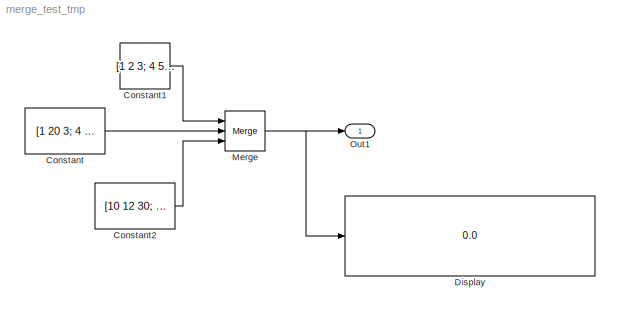
MODEL merge_test_tmp
KIND model
BLOCK [Constant] Constant
  SID = 11
  Value = [1 20 3; 4 50 6]
BLOCK [Constant] Constant1
  SID = 72
  Value = [1 2 3; 4 5 6]
BLOCK [Constant] Constant2
  SID = 73
  Value = [10 12 30; 4 15 6]
BLOCK [Display] Display
  Decimation = 1
  Ports = [1]
  SID = 74
BLOCK [Merge] Merge
  Inputs = 3
  Ports = [3, 1]
  SID = 70
BLOCK [Outport] Out1
  IconDisplay = Port number
  SID = 5
LINE Constant1:1 -> Merge:1
LINE Constant2:1 -> Merge:3
LINE Constant:1 -> Merge:2
NET Merge:1 -> Display:1, Out1:1
note: NET lines group one-source signal fan-out (src -> all destinations, sorted); 1:1 wires keep LINE
